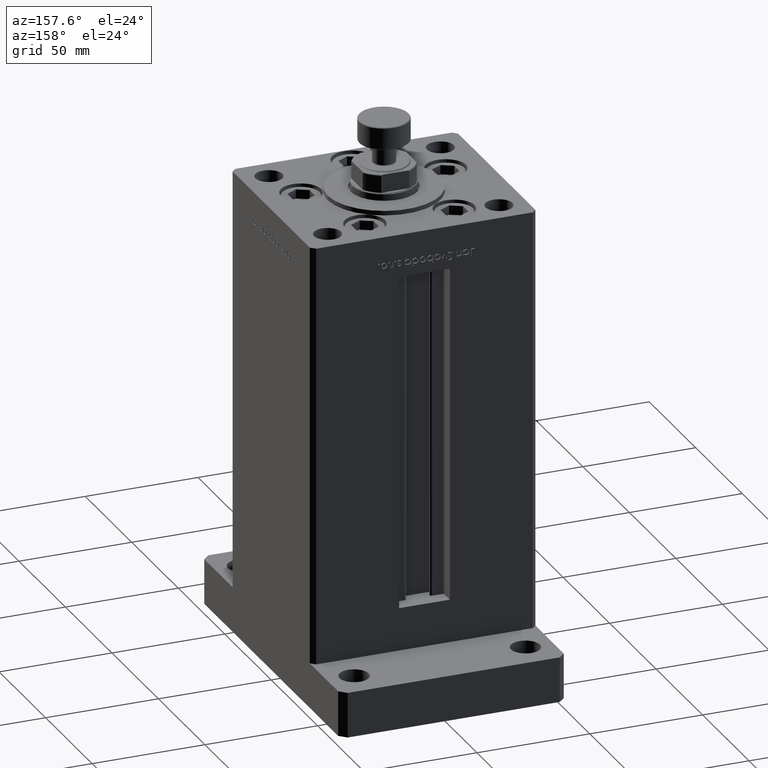
[diagram: clean part render]
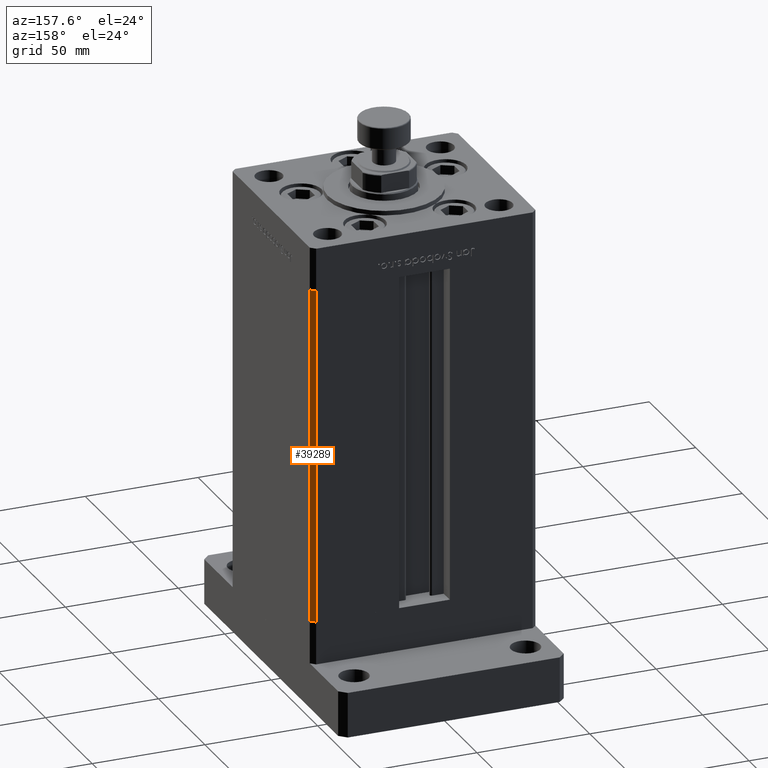
[diagram: same view with one face highlighted and labeled with its STEP entity id]
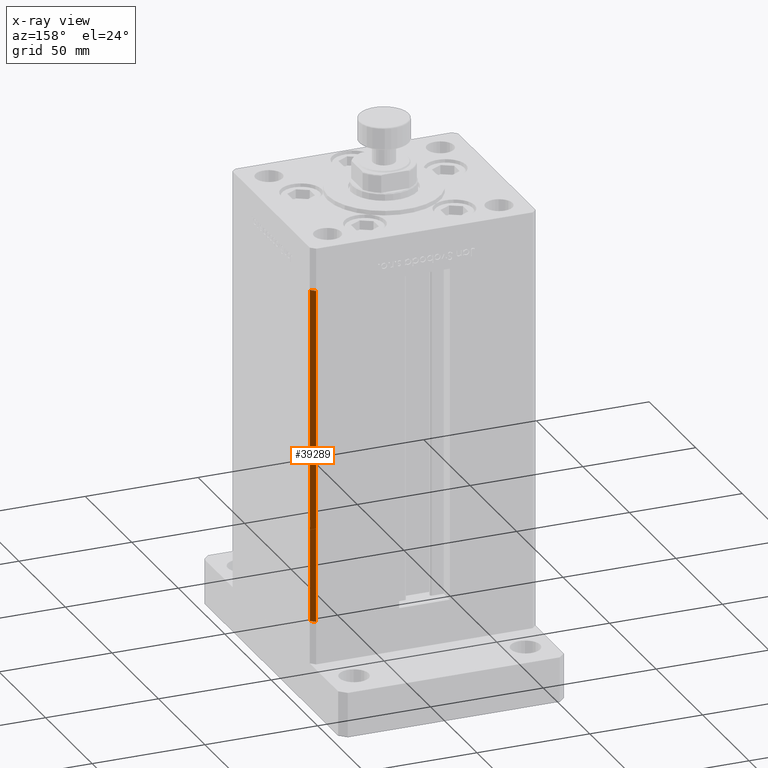
[diagram: x-ray of the same camera — body ghosted, the highlighted face saturated]
A machine part, auxiliary view. The second image highlights one B-rep face of the part: STEP entity #39289.
The next image is the same camera in x-ray: the body ghosted, the highlighted face saturated — about 0% of this face is hidden behind the body in this view.
In plain terms, the highlighted planar face has unit normal (0.7071, 0.7071, 0).
Its self-contained STEP definition (entity closure, byte-faithful):
#598 = LINE ( 'NONE', #39226, #26436 ) ;
#2302 = CARTESIAN_POINT ( 'NONE',  ( 48.00000000000000711, 43.50000000000000000, 148.5000000000000000 ) ) ;
#2720 = CARTESIAN_POINT ( 'NONE',  ( 48.00000000000000711, 43.50000000000000000, 0.000000000000000000 ) ) ;
#6411 = VERTEX_POINT ( 'NONE', #10937 ) ;
#9391 = ORIENTED_EDGE ( 'NONE', *, *, #52283, .T. ) ;
#9950 = CARTESIAN_POINT ( 'NONE',  ( 50.00000000000001421, 41.49999999999999289, 148.5000000000000000 ) ) ;
#10937 = CARTESIAN_POINT ( 'NONE',  ( 50.00000000000001421, 41.49999999999999289, 0.000000000000000000 ) ) ;
#11849 = VECTOR ( 'NONE', #32061, 1000.000000000000000 ) ;
#16353 = DIRECTION ( 'NONE',  ( -0.000000000000000000, -0.000000000000000000, -1.000000000000000000 ) ) ;
#17952 = ORIENTED_EDGE ( 'NONE', *, *, #40365, .F. ) ;
#18087 = EDGE_CURVE ( 'NONE', #49357, #6411, #43859, .T. ) ;
#21776 = CARTESIAN_POINT ( 'NONE',  ( 48.00000000000000711, 43.50000000000000000, 0.000000000000000000 ) ) ;
#23833 = LINE ( 'NONE', #52907, #11849 ) ;
#24206 = ORIENTED_EDGE ( 'NONE', *, *, #45263, .T. ) ;
#26436 = VECTOR ( 'NONE', #46638, 1000.000000000000000 ) ;
#26983 = PLANE ( 'NONE',  #47408 ) ;
#32061 = DIRECTION ( 'NONE',  ( 0.7071067811865487940, -0.7071067811865463515, 0.000000000000000000 ) ) ;
#33470 = ORIENTED_EDGE ( 'NONE', *, *, #18087, .F. ) ;
#34463 = VERTEX_POINT ( 'NONE', #9950 ) ;
#35488 = DIRECTION ( 'NONE',  ( 0.7071067811865463515, 0.7071067811865487940, -0.000000000000000000 ) ) ;
#36034 = DIRECTION ( 'NONE',  ( -0.7071067811865487940, 0.7071067811865463515, 0.000000000000000000 ) ) ;
#36310 = FACE_OUTER_BOUND ( 'NONE', #47989, .T. ) ;
#38862 = VECTOR ( 'NONE', #16353, 1000.000000000000000 ) ;
#39226 = CARTESIAN_POINT ( 'NONE',  ( 48.00000000000000711, 43.50000000000000000, 148.5000000000000000 ) ) ;
#39289 = ADVANCED_FACE ( 'NONE', ( #36310 ), #26983, .T. ) ;
#40365 = EDGE_CURVE ( 'NONE', #42753, #49357, #598, .T. ) ;
#42373 = CARTESIAN_POINT ( 'NONE',  ( 50.00000000000001421, 41.49999999999999289, 148.5000000000000000 ) ) ;
#42643 = LINE ( 'NONE', #42373, #38862 ) ;
#42753 = VERTEX_POINT ( 'NONE', #2302 ) ;
#43723 = CARTESIAN_POINT ( 'NONE',  ( 48.00000000000000711, 43.50000000000000000, 148.5000000000000000 ) ) ;
#43859 = LINE ( 'NONE', #2720, #49666 ) ;
#44122 = DIRECTION ( 'NONE',  ( 0.7071067811865487940, -0.7071067811865463515, 0.000000000000000000 ) ) ;
#45263 = EDGE_CURVE ( 'NONE', #34463, #6411, #42643, .T. ) ;
#46638 = DIRECTION ( 'NONE',  ( -0.000000000000000000, -0.000000000000000000, -1.000000000000000000 ) ) ;
#47408 = AXIS2_PLACEMENT_3D ( 'NONE', #43723, #35488, #36034 ) ;
#47989 = EDGE_LOOP ( 'NONE', ( #33470, #17952, #9391, #24206 ) ) ;
#49357 = VERTEX_POINT ( 'NONE', #21776 ) ;
#49666 = VECTOR ( 'NONE', #44122, 1000.000000000000000 ) ;
#52283 = EDGE_CURVE ( 'NONE', #42753, #34463, #23833, .T. ) ;
#52907 = CARTESIAN_POINT ( 'NONE',  ( 48.00000000000000711, 43.50000000000000000, 148.5000000000000000 ) ) ;